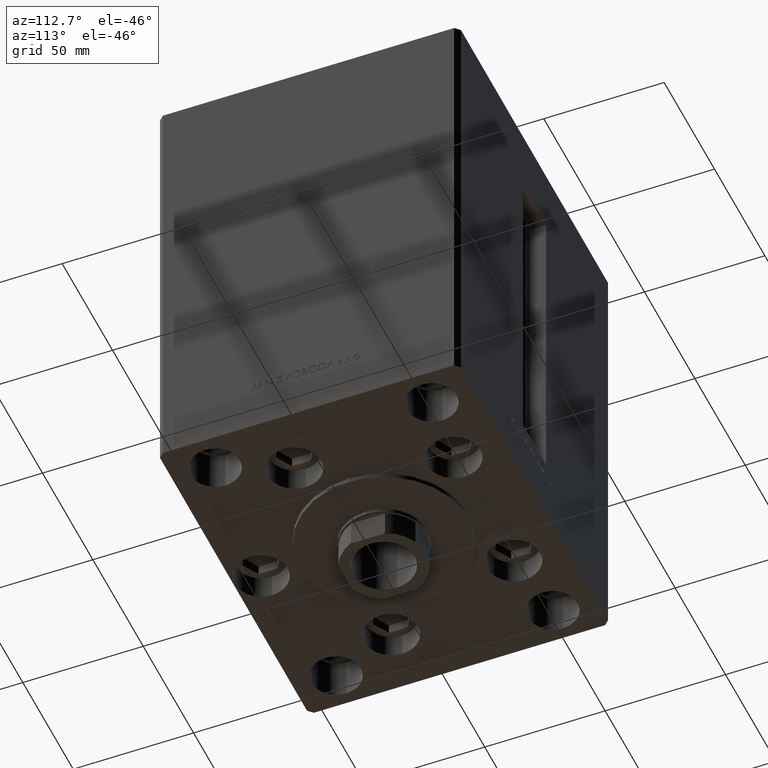
[diagram: clean part render]
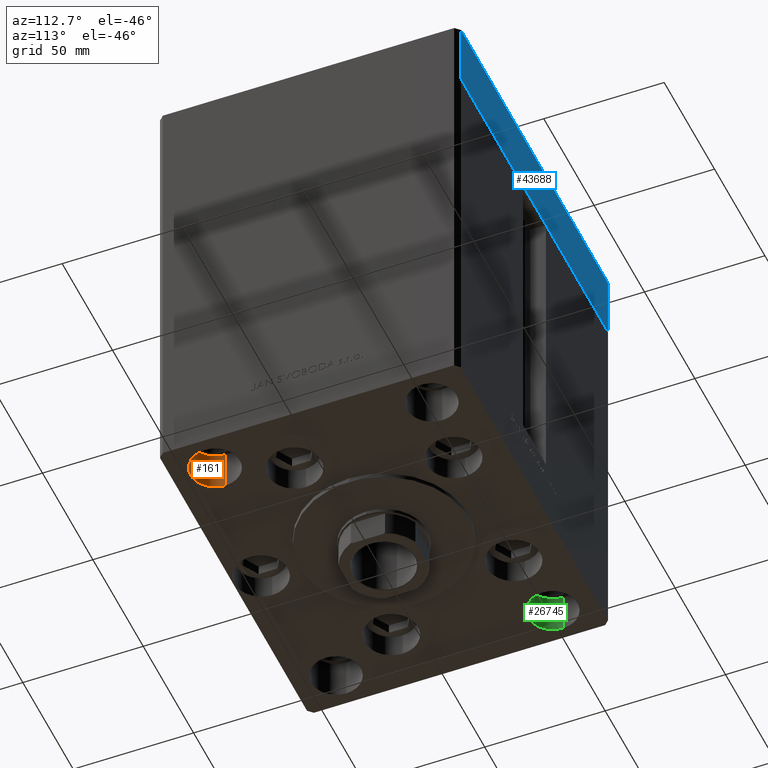
[diagram: same view with three faces highlighted in distinct colors, each labeled with its STEP entity id]
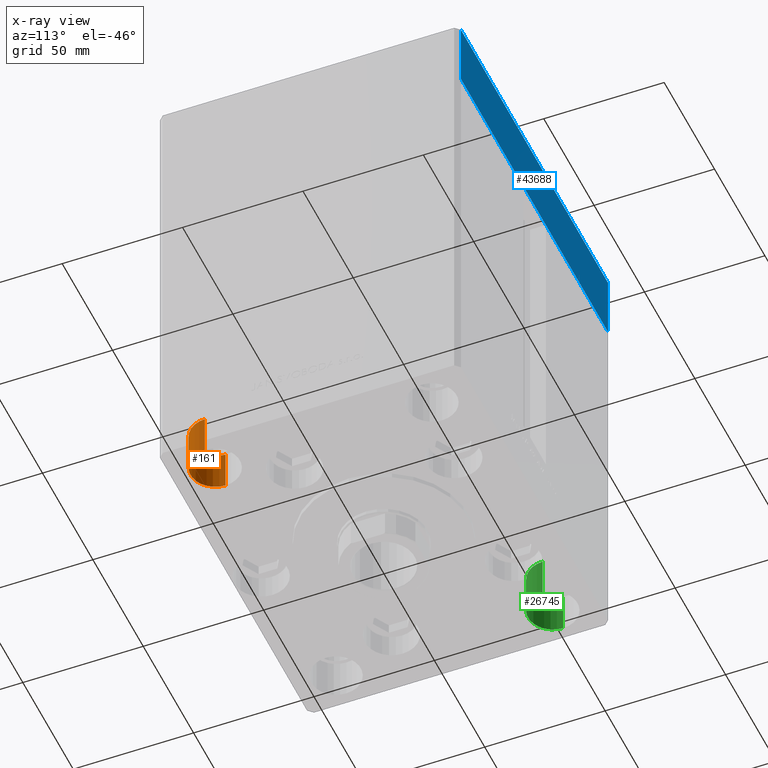
[diagram: x-ray of the same camera — body ghosted, the three highlighted faces saturated]
A machine part, auxiliary view with three faces highlighted in distinct colors.
The next image is the same camera in x-ray (body ghosted, the three faces saturated) — at least one of them is partly hidden behind the body in this view.
Their STEP definitions:

[orange] entity #161 — the highlighted cylindrical surface (edge-blend (fillet) strip) has radius 10.25 mm, axis along (0, 0, -1).
#77 = LINE ( 'NONE', #3652, #8053 ) ;
#161 = ADVANCED_FACE ( 'NONE', ( #13439 ), #10124, .F. ) ;
#3430 = EDGE_CURVE ( 'NONE', #15652, #12844, #44699, .T. ) ;
#3652 = CARTESIAN_POINT ( 'NONE',  ( -70.25000000000000000, -45.00000000000000000, -17.00000000000000000 ) ) ;
#3900 = ORIENTED_EDGE ( 'NONE', *, *, #21920, .T. ) ;
#5544 = DIRECTION ( 'NONE',  ( -0.000000000000000000, -0.000000000000000000, 1.000000000000000000 ) ) ;
#7287 = ORIENTED_EDGE ( 'NONE', *, *, #13879, .F. ) ;
#8053 = VECTOR ( 'NONE', #47108, 1000.000000000000000 ) ;
#8159 = AXIS2_PLACEMENT_3D ( 'NONE', #12964, #12203, #23410 ) ;
#8823 = ORIENTED_EDGE ( 'NONE', *, *, #40818, .F. ) ;
#9160 = DIRECTION ( 'NONE',  ( 1.000000000000000000, 0.000000000000000000, 0.000000000000000000 ) ) ;
#10124 = CYLINDRICAL_SURFACE ( 'NONE', #21876, 10.25000000000000178 ) ;
#12203 = DIRECTION ( 'NONE',  ( 0.000000000000000000, 0.000000000000000000, 1.000000000000000000 ) ) ;
#12722 = DIRECTION ( 'NONE',  ( 0.000000000000000000, 0.000000000000000000, 1.000000000000000000 ) ) ;
#12844 = VERTEX_POINT ( 'NONE', #28562 ) ;
#12964 = CARTESIAN_POINT ( 'NONE',  ( -60.00000000000000711, -45.00000000000000000, 0.000000000000000000 ) ) ;
#13439 = FACE_OUTER_BOUND ( 'NONE', #48209, .T. ) ;
#13879 = EDGE_CURVE ( 'NONE', #33606, #12844, #21692, .T. ) ;
#14220 = CIRCLE ( 'NONE', #15065, 10.25000000000000178 ) ;
#15065 = AXIS2_PLACEMENT_3D ( 'NONE', #39664, #12722, #9160 ) ;
#15652 = VERTEX_POINT ( 'NONE', #37409 ) ;
#16426 = ORIENTED_EDGE ( 'NONE', *, *, #3430, .T. ) ;
#21437 = DIRECTION ( 'NONE',  ( -0.000000000000000000, -0.000000000000000000, 1.000000000000000000 ) ) ;
#21692 = LINE ( 'NONE', #33895, #24656 ) ;
#21835 = VERTEX_POINT ( 'NONE', #26541 ) ;
#21876 = AXIS2_PLACEMENT_3D ( 'NONE', #25626, #5544, #41139 ) ;
#21920 = EDGE_CURVE ( 'NONE', #21835, #15652, #77, .T. ) ;
#23410 = DIRECTION ( 'NONE',  ( 1.000000000000000000, 0.000000000000000000, 0.000000000000000000 ) ) ;
#24656 = VECTOR ( 'NONE', #21437, 1000.000000000000000 ) ;
#25626 = CARTESIAN_POINT ( 'NONE',  ( -60.00000000000000711, -45.00000000000000000, -17.00000000000000000 ) ) ;
#26541 = CARTESIAN_POINT ( 'NONE',  ( -70.25000000000000000, -45.00000000000000000, -17.00000000000000000 ) ) ;
#27219 = CARTESIAN_POINT ( 'NONE',  ( -49.75000000000000000, -45.00000000000000000, -17.00000000000000000 ) ) ;
#28562 = CARTESIAN_POINT ( 'NONE',  ( -49.75000000000000000, -45.00000000000000000, 0.000000000000000000 ) ) ;
#33606 = VERTEX_POINT ( 'NONE', #27219 ) ;
#33895 = CARTESIAN_POINT ( 'NONE',  ( -49.75000000000000000, -45.00000000000000000, -17.00000000000000000 ) ) ;
#37409 = CARTESIAN_POINT ( 'NONE',  ( -70.25000000000000000, -45.00000000000000000, 0.000000000000000000 ) ) ;
#39664 = CARTESIAN_POINT ( 'NONE',  ( -60.00000000000000711, -45.00000000000000000, -17.00000000000000000 ) ) ;
#40818 = EDGE_CURVE ( 'NONE', #21835, #33606, #14220, .T. ) ;
#41139 = DIRECTION ( 'NONE',  ( 1.000000000000000000, 0.000000000000000000, 0.000000000000000000 ) ) ;
#44699 = CIRCLE ( 'NONE', #8159, 10.25000000000000178 ) ;
#47108 = DIRECTION ( 'NONE',  ( -0.000000000000000000, -0.000000000000000000, 1.000000000000000000 ) ) ;
#48209 = EDGE_LOOP ( 'NONE', ( #8823, #3900, #16426, #7287 ) ) ;

[blue] entity #43688 — the highlighted planar face has unit normal (-0, 1, 0).
#4667 = CARTESIAN_POINT ( 'NONE',  ( -73.00000000000001421, 62.49999999999998579, -27.00000000000000000 ) ) ;
#4925 = LINE ( 'NONE', #20448, #4978 ) ;
#4978 = VECTOR ( 'NONE', #16888, 1000.000000000000000 ) ;
#5866 = LINE ( 'NONE', #45023, #45978 ) ;
#7834 = AXIS2_PLACEMENT_3D ( 'NONE', #36370, #19869, #44257 ) ;
#11773 = CARTESIAN_POINT ( 'NONE',  ( 72.99999999999992895, 62.50000000000001421, 0.000000000000000000 ) ) ;
#12020 = CARTESIAN_POINT ( 'NONE',  ( -73.00000000000001421, 62.49999999999998579, 0.000000000000000000 ) ) ;
#12559 = DIRECTION ( 'NONE',  ( 0.000000000000000000, 0.000000000000000000, 1.000000000000000000 ) ) ;
#12721 = ORIENTED_EDGE ( 'NONE', *, *, #31975, .F. ) ;
#13805 = EDGE_CURVE ( 'NONE', #18948, #15426, #36438, .T. ) ;
#15343 = DIRECTION ( 'NONE',  ( -1.000000000000000000, -1.901066822988282689E-16, 0.000000000000000000 ) ) ;
#15424 = EDGE_CURVE ( 'NONE', #22351, #15426, #36966, .T. ) ;
#15426 = VERTEX_POINT ( 'NONE', #12020 ) ;
#16888 = DIRECTION ( 'NONE',  ( 0.000000000000000000, 0.000000000000000000, 1.000000000000000000 ) ) ;
#18948 = VERTEX_POINT ( 'NONE', #27817 ) ;
#19869 = DIRECTION ( 'NONE',  ( -1.901066822988282936E-16, 1.000000000000000000, 0.000000000000000000 ) ) ;
#20448 = CARTESIAN_POINT ( 'NONE',  ( 72.99999999999992895, 62.50000000000001421, -27.00000000000000000 ) ) ;
#22351 = VERTEX_POINT ( 'NONE', #24392 ) ;
#24173 = FACE_OUTER_BOUND ( 'NONE', #42776, .T. ) ;
#24392 = CARTESIAN_POINT ( 'NONE',  ( 72.99999999999992895, 62.50000000000001421, 0.000000000000000000 ) ) ;
#27817 = CARTESIAN_POINT ( 'NONE',  ( -73.00000000000001421, 62.49999999999998579, -27.00000000000000000 ) ) ;
#29149 = ORIENTED_EDGE ( 'NONE', *, *, #46670, .T. ) ;
#31975 = EDGE_CURVE ( 'NONE', #49075, #22351, #4925, .T. ) ;
#36370 = CARTESIAN_POINT ( 'NONE',  ( 72.99999999999992895, 62.50000000000001421, -27.00000000000000000 ) ) ;
#36438 = LINE ( 'NONE', #4667, #46599 ) ;
#36811 = ORIENTED_EDGE ( 'NONE', *, *, #15424, .F. ) ;
#36966 = LINE ( 'NONE', #11773, #37707 ) ;
#37707 = VECTOR ( 'NONE', #15343, 1000.000000000000000 ) ;
#39987 = ORIENTED_EDGE ( 'NONE', *, *, #13805, .T. ) ;
#42776 = EDGE_LOOP ( 'NONE', ( #36811, #12721, #29149, #39987 ) ) ;
#43688 = ADVANCED_FACE ( 'NONE', ( #24173 ), #47319, .T. ) ;
#44257 = DIRECTION ( 'NONE',  ( -1.000000000000000000, -1.901066822988282936E-16, 0.000000000000000000 ) ) ;
#44969 = CARTESIAN_POINT ( 'NONE',  ( 72.99999999999992895, 62.50000000000001421, -27.00000000000000000 ) ) ;
#45023 = CARTESIAN_POINT ( 'NONE',  ( 72.99999999999992895, 62.50000000000001421, -27.00000000000000000 ) ) ;
#45281 = DIRECTION ( 'NONE',  ( -1.000000000000000000, -1.901066822988282689E-16, 0.000000000000000000 ) ) ;
#45978 = VECTOR ( 'NONE', #45281, 1000.000000000000000 ) ;
#46599 = VECTOR ( 'NONE', #12559, 1000.000000000000000 ) ;
#46670 = EDGE_CURVE ( 'NONE', #49075, #18948, #5866, .T. ) ;
#47319 = PLANE ( 'NONE',  #7834 ) ;
#49075 = VERTEX_POINT ( 'NONE', #44969 ) ;

[green] entity #26745 — the highlighted cylindrical surface (edge-blend (fillet) strip) has radius 10.25 mm, axis along (0, 0, -1).
#629 = VERTEX_POINT ( 'NONE', #7767 ) ;
#2486 = AXIS2_PLACEMENT_3D ( 'NONE', #40544, #5707, #48427 ) ;
#5573 = CARTESIAN_POINT ( 'NONE',  ( 70.25000000000000000, 45.00000000000000000, -17.00000000000000000 ) ) ;
#5707 = DIRECTION ( 'NONE',  ( -0.000000000000000000, -0.000000000000000000, 1.000000000000000000 ) ) ;
#6489 = CIRCLE ( 'NONE', #48691, 10.24999999999999467 ) ;
#7377 = ORIENTED_EDGE ( 'NONE', *, *, #16730, .F. ) ;
#7767 = CARTESIAN_POINT ( 'NONE',  ( 70.25000000000000000, 45.00000000000000000, 0.000000000000000000 ) ) ;
#12533 = AXIS2_PLACEMENT_3D ( 'NONE', #16153, #23528, #35229 ) ;
#15221 = CARTESIAN_POINT ( 'NONE',  ( 49.75000000000000000, 45.00000000000000000, -17.00000000000000000 ) ) ;
#16122 = EDGE_CURVE ( 'NONE', #20826, #28991, #38360, .T. ) ;
#16153 = CARTESIAN_POINT ( 'NONE',  ( 60.00000000000000000, 45.00000000000000000, -17.00000000000000000 ) ) ;
#16516 = EDGE_CURVE ( 'NONE', #20826, #45683, #27955, .T. ) ;
#16730 = EDGE_CURVE ( 'NONE', #45683, #629, #24153, .T. ) ;
#18781 = DIRECTION ( 'NONE',  ( -0.000000000000000000, -0.000000000000000000, 1.000000000000000000 ) ) ;
#18811 = CARTESIAN_POINT ( 'NONE',  ( 49.75000000000000000, 45.00000000000000000, 0.000000000000000000 ) ) ;
#20211 = EDGE_LOOP ( 'NONE', ( #35681, #45823, #31709, #7377 ) ) ;
#20826 = VERTEX_POINT ( 'NONE', #45093 ) ;
#20970 = CYLINDRICAL_SURFACE ( 'NONE', #2486, 10.24999999999999467 ) ;
#23528 = DIRECTION ( 'NONE',  ( 0.000000000000000000, 0.000000000000000000, 1.000000000000000000 ) ) ;
#24153 = LINE ( 'NONE', #5573, #29624 ) ;
#24221 = EDGE_CURVE ( 'NONE', #28991, #629, #6489, .T. ) ;
#26745 = ADVANCED_FACE ( 'NONE', ( #32920 ), #20970, .F. ) ;
#27955 = CIRCLE ( 'NONE', #12533, 10.24999999999999467 ) ;
#28663 = DIRECTION ( 'NONE',  ( 0.000000000000000000, 0.000000000000000000, 1.000000000000000000 ) ) ;
#28991 = VERTEX_POINT ( 'NONE', #18811 ) ;
#29624 = VECTOR ( 'NONE', #35598, 1000.000000000000000 ) ;
#31709 = ORIENTED_EDGE ( 'NONE', *, *, #24221, .T. ) ;
#32920 = FACE_OUTER_BOUND ( 'NONE', #20211, .T. ) ;
#35229 = DIRECTION ( 'NONE',  ( 1.000000000000000000, 0.000000000000000000, 0.000000000000000000 ) ) ;
#35598 = DIRECTION ( 'NONE',  ( -0.000000000000000000, -0.000000000000000000, 1.000000000000000000 ) ) ;
#35681 = ORIENTED_EDGE ( 'NONE', *, *, #16516, .F. ) ;
#35782 = CARTESIAN_POINT ( 'NONE',  ( 60.00000000000000000, 45.00000000000000000, 0.000000000000000000 ) ) ;
#38360 = LINE ( 'NONE', #15221, #38547 ) ;
#38547 = VECTOR ( 'NONE', #18781, 1000.000000000000000 ) ;
#40544 = CARTESIAN_POINT ( 'NONE',  ( 60.00000000000000000, 45.00000000000000000, -17.00000000000000000 ) ) ;
#43676 = DIRECTION ( 'NONE',  ( 1.000000000000000000, 0.000000000000000000, 0.000000000000000000 ) ) ;
#45093 = CARTESIAN_POINT ( 'NONE',  ( 49.75000000000000000, 45.00000000000000000, -17.00000000000000000 ) ) ;
#45592 = CARTESIAN_POINT ( 'NONE',  ( 70.25000000000000000, 45.00000000000000000, -17.00000000000000000 ) ) ;
#45683 = VERTEX_POINT ( 'NONE', #45592 ) ;
#45823 = ORIENTED_EDGE ( 'NONE', *, *, #16122, .T. ) ;
#48427 = DIRECTION ( 'NONE',  ( 1.000000000000000000, 0.000000000000000000, 0.000000000000000000 ) ) ;
#48691 = AXIS2_PLACEMENT_3D ( 'NONE', #35782, #28663, #43676 ) ;